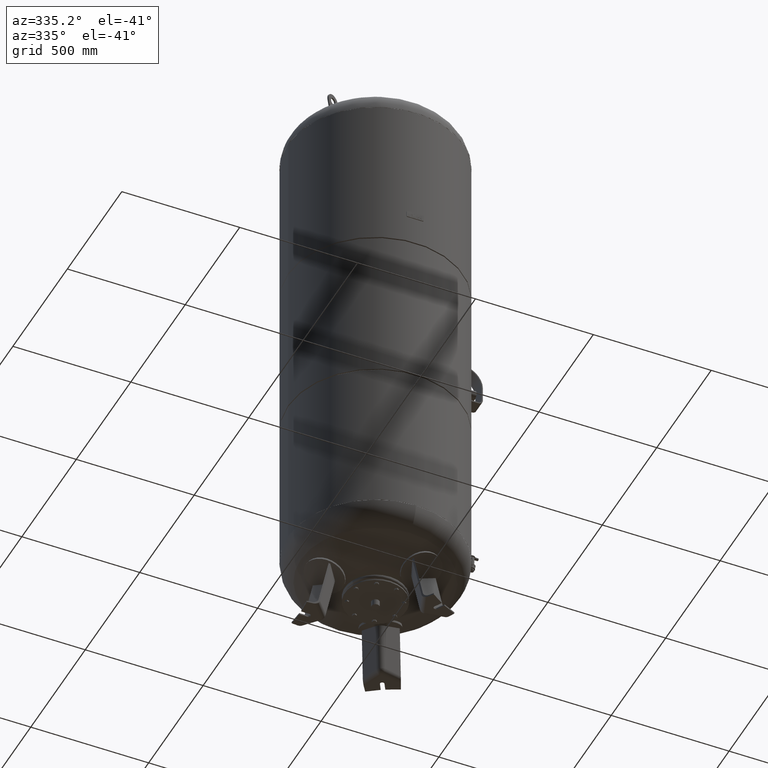
[diagram: clean part render]
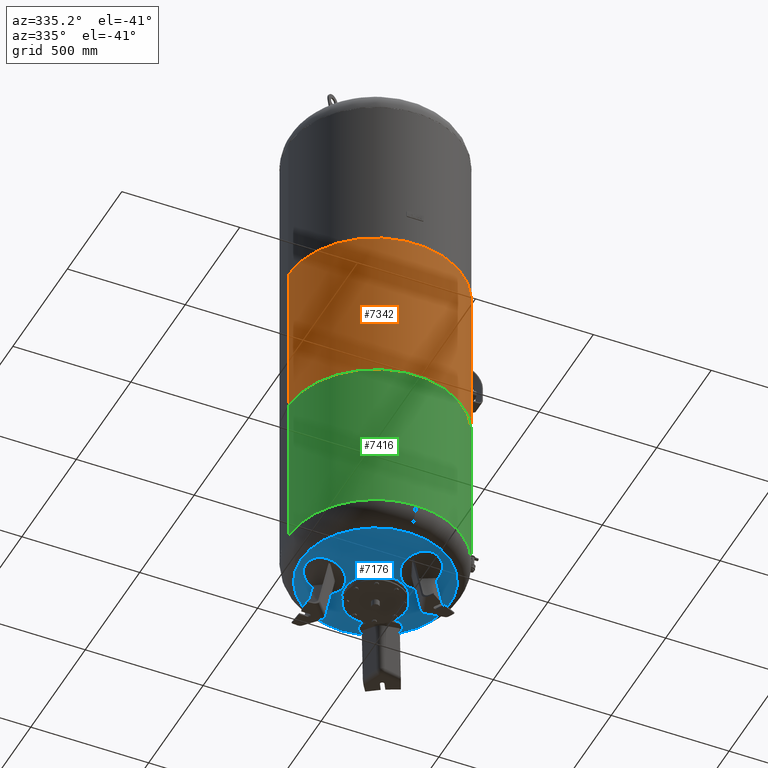
[diagram: same view with three faces highlighted in distinct colors, each labeled with its STEP entity id]
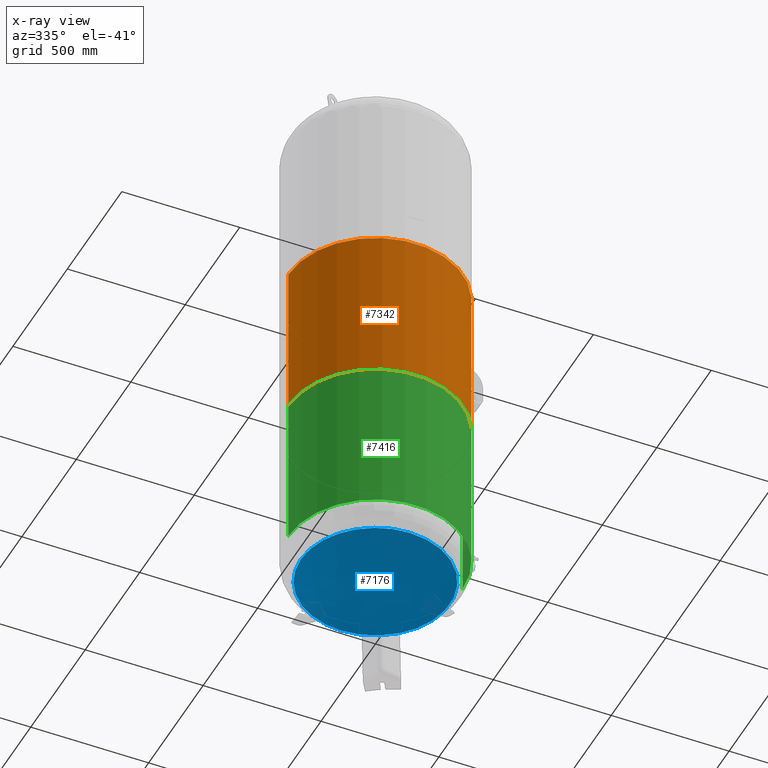
[diagram: x-ray of the same camera — body ghosted, the three highlighted faces saturated]
A machine part, auxiliary view with three faces highlighted in distinct colors.
The next image is the same camera in x-ray (body ghosted, the three faces saturated) — at least one of them is partly hidden behind the body in this view.
Their STEP definitions:

[orange] entity #7342 — the highlighted cylindrical surface (partial cylindrical patch) has radius 370 mm, axis along (0, 0, 1).
#7301=CARTESIAN_POINT('',(0.0,0.0,1374.0));
#7302=DIRECTION('',(1.667129E-017,0.0,1.0));
#7303=DIRECTION('',(1.0,0.0,0.0));
#7304=AXIS2_PLACEMENT_3D('',#7301,#7302,#7303);
#7305=CYLINDRICAL_SURFACE('',#7304,369.999999999999430);
#7306=CARTESIAN_POINT('',(369.999999999999490,0.0,1707.666666666666700));
#7307=VERTEX_POINT('',#7306);
#7308=CARTESIAN_POINT('',(369.999999999999370,0.0,1040.333333333333000));
#7309=VERTEX_POINT('',#7308);
#7310=CARTESIAN_POINT('',(369.999999999999490,0.0,1707.666666666666700));
#7311=DIRECTION('',(0.0,0.0,-1.0));
#7312=VECTOR('',#7311,667.333333333333710);
#7313=LINE('',#7310,#7312);
#7314=EDGE_CURVE('',#7307,#7309,#7313,.T.);
#7315=ORIENTED_EDGE('',*,*,#7314,.F.);
#7316=CARTESIAN_POINT('',(-369.999999999999430,-4.531044E-014,1707.666666666666700));
#7317=VERTEX_POINT('',#7316);
#7318=CARTESIAN_POINT('',(5.562655E-015,0.0,1707.666666666666700));
#7319=DIRECTION('',(0.0,0.0,1.0));
#7320=DIRECTION('',(1.0,0.0,0.0));
#7321=AXIS2_PLACEMENT_3D('',#7318,#7319,#7320);
#7322=CIRCLE('',#7321,369.999999999999490);
#7323=EDGE_CURVE('',#7317,#7307,#7322,.T.);
#7324=ORIENTED_EDGE('',*,*,#7323,.F.);
#7325=CARTESIAN_POINT('',(-369.999999999999430,-4.531044E-014,1040.333333333333000));
#7326=VERTEX_POINT('',#7325);
#7327=CARTESIAN_POINT('',(-369.999999999999430,-4.531044E-014,1707.666666666666700));
#7328=DIRECTION('',(0.0,0.0,-1.0));
#7329=VECTOR('',#7328,667.333333333333710);
#7330=LINE('',#7327,#7329);
#7331=EDGE_CURVE('',#7317,#7326,#7330,.T.);
#7332=ORIENTED_EDGE('',*,*,#7331,.T.);
#7333=CARTESIAN_POINT('',(-5.562655E-015,0.0,1040.333333333333000));
#7334=DIRECTION('',(0.0,0.0,1.0));
#7335=DIRECTION('',(1.0,0.0,0.0));
#7336=AXIS2_PLACEMENT_3D('',#7333,#7334,#7335);
#7337=CIRCLE('',#7336,369.999999999999370);
#7338=EDGE_CURVE('',#7326,#7309,#7337,.T.);
#7339=ORIENTED_EDGE('',*,*,#7338,.T.);
#7340=EDGE_LOOP('',(#7315,#7324,#7332,#7339));
#7341=FACE_OUTER_BOUND('',#7340,.T.);
#7342=ADVANCED_FACE('',(#7341),#7305,.T.);

[blue] entity #7176 — the highlighted spherical surface has radius 594 mm.
#7115=CARTESIAN_POINT('',(0.0,-315.931034482758610,274.985505725079410));
#7116=VERTEX_POINT('',#7115);
#7132=CARTESIAN_POINT('',(-3.868912E-014,315.931034482758610,274.985505725079630));
#7133=VERTEX_POINT('',#7132);
#7141=CARTESIAN_POINT('',(-315.931034482758610,-1.671377E-014,274.985505725079520));
#7142=VERTEX_POINT('',#7141);
#7143=CARTESIAN_POINT('',(0.0,-1.671377E-014,274.985505725079520));
#7144=DIRECTION('',(0.0,0.0,1.0));
#7145=DIRECTION('',(-1.0,0.0,0.0));
#7146=AXIS2_PLACEMENT_3D('',#7143,#7144,#7145);
#7147=CIRCLE('',#7146,315.931034482758610);
#7148=EDGE_CURVE('',#7133,#7142,#7147,.T.);
#7150=CARTESIAN_POINT('',(0.0,-1.671377E-014,274.985505725079520));
#7151=DIRECTION('',(0.0,0.0,1.0));
#7152=DIRECTION('',(-1.0,0.0,0.0));
#7153=AXIS2_PLACEMENT_3D('',#7150,#7151,#7152);
#7154=CIRCLE('',#7153,315.931034482758610);
#7155=EDGE_CURVE('',#7142,#7116,#7154,.T.);
#7160=CARTESIAN_POINT('',(0.0,-1.091160E-013,778.0));
#7161=DIRECTION('',(0.0,-1.0,0.0));
#7162=DIRECTION('',(1.0,0.0,0.0));
#7163=AXIS2_PLACEMENT_3D('',#7160,#7161,#7162);
#7164=SPHERICAL_SURFACE('',#7163,594.0);
#7165=ORIENTED_EDGE('',*,*,#7155,.F.);
#7166=ORIENTED_EDGE('',*,*,#7148,.F.);
#7167=CARTESIAN_POINT('',(0.0,-1.671377E-014,274.985505725079520));
#7168=DIRECTION('',(0.0,0.0,1.0));
#7169=DIRECTION('',(-1.0,0.0,0.0));
#7170=AXIS2_PLACEMENT_3D('',#7167,#7168,#7169);
#7171=CIRCLE('',#7170,315.931034482758610);
#7172=EDGE_CURVE('',#7116,#7133,#7171,.T.);
#7173=ORIENTED_EDGE('',*,*,#7172,.F.);
#7174=EDGE_LOOP('',(#7165,#7166,#7173));
#7175=FACE_OUTER_BOUND('',#7174,.T.);
#7176=ADVANCED_FACE('',(#7175),#7164,.T.);

[green] entity #7416 — the highlighted cylindrical surface (partial cylindrical patch) has radius 370 mm, axis along (0, 0, 1).
#7350=CARTESIAN_POINT('',(370.000000000000110,0.0,1035.333333333333000));
#7351=VERTEX_POINT('',#7350);
#7367=CARTESIAN_POINT('',(-370.0,-4.531044E-014,1035.333333333333000));
#7368=VERTEX_POINT('',#7367);
#7375=CARTESIAN_POINT('',(-5.646011E-015,0.0,1035.333333333333000));
#7376=DIRECTION('',(0.0,0.0,1.0));
#7377=DIRECTION('',(1.0,0.0,0.0));
#7378=AXIS2_PLACEMENT_3D('',#7375,#7376,#7377);
#7379=CIRCLE('',#7378,370.000000000000110);
#7380=EDGE_CURVE('',#7368,#7351,#7379,.T.);
#7385=CARTESIAN_POINT('',(-1.116699E-014,0.0,704.166666666666520));
#7386=DIRECTION('',(1.667129E-017,0.0,1.0));
#7387=DIRECTION('',(1.0,0.0,0.0));
#7388=AXIS2_PLACEMENT_3D('',#7385,#7386,#7387);
#7389=CYLINDRICAL_SURFACE('',#7388,370.0);
#7390=CARTESIAN_POINT('',(369.999999999999890,0.0,372.999999999999890));
#7391=VERTEX_POINT('',#7390);
#7392=CARTESIAN_POINT('',(370.000000000000110,0.0,1035.333333333333000));
#7393=DIRECTION('',(0.0,0.0,-1.0));
#7394=VECTOR('',#7393,662.333333333333140);
#7395=LINE('',#7392,#7394);
#7396=EDGE_CURVE('',#7351,#7391,#7395,.T.);
#7397=ORIENTED_EDGE('',*,*,#7396,.F.);
#7398=ORIENTED_EDGE('',*,*,#7380,.F.);
#7399=CARTESIAN_POINT('',(-370.0,-4.531044E-014,373.0));
#7400=VERTEX_POINT('',#7399);
#7401=CARTESIAN_POINT('',(-370.0,-4.531044E-014,1035.333333333333000));
#7402=DIRECTION('',(0.0,0.0,-1.0));
#7403=VECTOR('',#7402,662.333333333333030);
#7404=LINE('',#7401,#7403);
#7405=EDGE_CURVE('',#7368,#7400,#7404,.T.);
#7406=ORIENTED_EDGE('',*,*,#7405,.T.);
#7407=CARTESIAN_POINT('',(-1.668796E-014,0.0,373.0));
#7408=DIRECTION('',(0.0,0.0,1.0));
#7409=DIRECTION('',(1.0,0.0,0.0));
#7410=AXIS2_PLACEMENT_3D('',#7407,#7408,#7409);
#7411=CIRCLE('',#7410,369.999999999999890);
#7412=EDGE_CURVE('',#7400,#7391,#7411,.T.);
#7413=ORIENTED_EDGE('',*,*,#7412,.T.);
#7414=EDGE_LOOP('',(#7397,#7398,#7406,#7413));
#7415=FACE_OUTER_BOUND('',#7414,.T.);
#7416=ADVANCED_FACE('',(#7415),#7389,.T.);